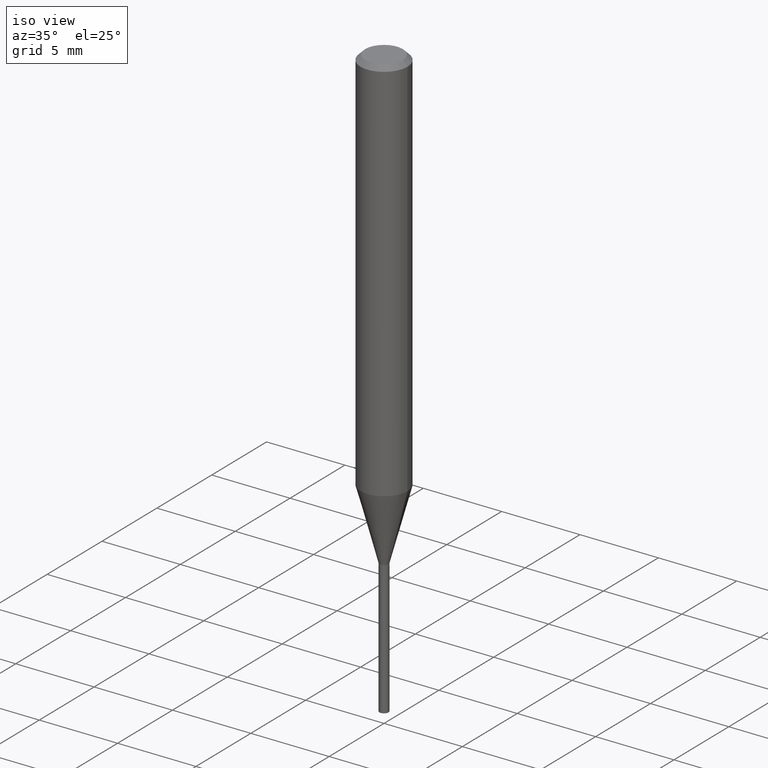
[diagram: clean part render]
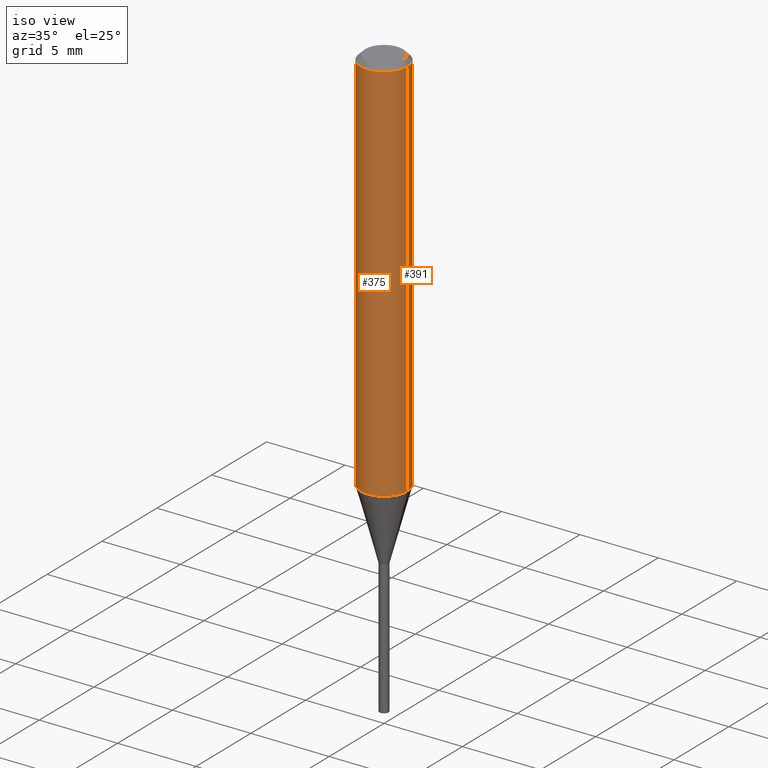
[diagram: same view with one multi-face feature highlighted, each face labeled with its STEP entity id]
A machine part, iso view. The highlighted faces form ONE feature: a constant-radius fillet chain: 2 tangent blend faces with common blend radius 1.4999 mm. The faces share edges in the B-rep.
Their STEP definitions:
[1] entity #391 (Cylinder):
#14 = CARTESIAN_POINT ( 'NONE',  ( 0.05904999999999999832, -4.535783407291118600E-16, -0.01181000000000006871 ) ) ;
#16 = DIRECTION ( 'NONE',  ( 1.000000000000000000, -6.982962677686266711E-15, 4.876176775795936353E-29 ) ) ;
#21 = CARTESIAN_POINT ( 'NONE',  ( -0.05905000000000013016, -2.986439169543490750E-15, -0.9755213688578289188 ) ) ;
#28 = EDGE_LOOP ( 'NONE', ( #339, #81, #338, #84 ) ) ;
#40 = CARTESIAN_POINT ( 'NONE',  ( -0.05904999999999999832, -1.304049039344443704E-15, -0.01181000000000006871 ) ) ;
#55 = CARTESIAN_POINT ( 'NONE',  ( 2.888098660104663328E-31, -4.123439461173779030E-17, -0.01181000000000006871 ) ) ;
#58 = DIRECTION ( 'NONE',  ( -2.445468806185136877E-29, 3.491481338843145188E-15, 1.000000000000000000 ) ) ;
#60 = AXIS2_PLACEMENT_3D ( 'NONE', #275, #431, #16 ) ;
#74 = VERTEX_POINT ( 'NONE', #40 ) ;
#75 = AXIS2_PLACEMENT_3D ( 'NONE', #55, #164, #167 ) ;
#81 = ORIENTED_EDGE ( 'NONE', *, *, #193, .T. ) ;
#84 = ORIENTED_EDGE ( 'NONE', *, *, #117, .F. ) ;
#87 = DIRECTION ( 'NONE',  ( 1.000000000000000000, -6.982962677686265133E-15, 0.000000000000000000 ) ) ;
#117 = EDGE_CURVE ( 'NONE', #328, #489, #165, .T. ) ;
#135 = FACE_OUTER_BOUND ( 'NONE', #28, .T. ) ;
#164 = DIRECTION ( 'NONE',  ( -2.445468806185136597E-29, 3.491481338843145583E-15, 1.000000000000000000 ) ) ;
#165 = LINE ( 'NONE', #351, #378 ) ;
#167 = DIRECTION ( 'NONE',  ( 1.000000000000000000, -6.982962677686266711E-15, 0.000000000000000000 ) ) ;
#193 = EDGE_CURVE ( 'NONE', #414, #74, #278, .T. ) ;
#223 = CIRCLE ( 'NONE', #304, 0.05905000000000013016 ) ;
#236 = VECTOR ( 'NONE', #239, 39.37007874015748143 ) ;
#239 = DIRECTION ( 'NONE',  ( -2.445468806185136877E-29, 3.491481338843145188E-15, 1.000000000000000000 ) ) ;
#248 = CARTESIAN_POINT ( 'NONE',  ( 0.05905000000000013016, -3.818358601127205952E-15, -0.9755213688578289188 ) ) ;
#273 = CARTESIAN_POINT ( 'NONE',  ( -0.05905000000000006771, 4.195754854663396409E-16, -2.904631170795525045E-30 ) ) ;
#275 = CARTESIAN_POINT ( 'NONE',  ( 0.000000000000000000, 0.000000000000000000, 0.000000000000000000 ) ) ;
#278 = LINE ( 'NONE', #273, #236 ) ;
#287 = CIRCLE ( 'NONE', #75, 0.05904999999999999832 ) ;
#304 = AXIS2_PLACEMENT_3D ( 'NONE', #352, #389, #87 ) ;
#328 = VERTEX_POINT ( 'NONE', #248 ) ;
#338 = ORIENTED_EDGE ( 'NONE', *, *, #490, .F. ) ;
#339 = ORIENTED_EDGE ( 'NONE', *, *, #470, .T. ) ;
#351 = CARTESIAN_POINT ( 'NONE',  ( 0.05905000000000006771, -4.123439461173745257E-16, 2.879382386107503723E-30 ) ) ;
#352 = CARTESIAN_POINT ( 'NONE',  ( 2.385607077308845080E-29, -3.406014655009830638E-15, -0.9755213688578289188 ) ) ;
#378 = VECTOR ( 'NONE', #58, 39.37007874015748143 ) ;
#389 = DIRECTION ( 'NONE',  ( -2.445468806185136597E-29, 3.491481338843145583E-15, 1.000000000000000000 ) ) ;
#391 = ADVANCED_FACE ( 'NONE', ( #135 ), #398, .T. ) ;
#398 = CYLINDRICAL_SURFACE ( 'NONE', #60, 0.05905000000000006771 ) ;
#414 = VERTEX_POINT ( 'NONE', #21 ) ;
#431 = DIRECTION ( 'NONE',  ( -2.445468806185136597E-29, 3.491481338843145583E-15, 1.000000000000000000 ) ) ;
#470 = EDGE_CURVE ( 'NONE', #328, #414, #223, .T. ) ;
#489 = VERTEX_POINT ( 'NONE', #14 ) ;
#490 = EDGE_CURVE ( 'NONE', #489, #74, #287, .T. ) ;
[2] entity #375 (Cylinder):
#1 = ORIENTED_EDGE ( 'NONE', *, *, #54, .F. ) ;
#6 = DIRECTION ( 'NONE',  ( -2.445468806185136597E-29, 3.491481338843145583E-15, 1.000000000000000000 ) ) ;
#8 = ORIENTED_EDGE ( 'NONE', *, *, #193, .F. ) ;
#14 = CARTESIAN_POINT ( 'NONE',  ( 0.05904999999999999832, -4.535783407291118600E-16, -0.01181000000000006871 ) ) ;
#21 = CARTESIAN_POINT ( 'NONE',  ( -0.05905000000000013016, -2.986439169543490750E-15, -0.9755213688578289188 ) ) ;
#22 = CARTESIAN_POINT ( 'NONE',  ( 2.385607077308845080E-29, -3.406014655009830638E-15, -0.9755213688578289188 ) ) ;
#40 = CARTESIAN_POINT ( 'NONE',  ( -0.05904999999999999832, -1.304049039344443704E-15, -0.01181000000000006871 ) ) ;
#54 = EDGE_CURVE ( 'NONE', #74, #489, #386, .T. ) ;
#58 = DIRECTION ( 'NONE',  ( -2.445468806185136877E-29, 3.491481338843145188E-15, 1.000000000000000000 ) ) ;
#74 = VERTEX_POINT ( 'NONE', #40 ) ;
#117 = EDGE_CURVE ( 'NONE', #328, #489, #165, .T. ) ;
#126 = FACE_OUTER_BOUND ( 'NONE', #447, .T. ) ;
#147 = ORIENTED_EDGE ( 'NONE', *, *, #269, .T. ) ;
#165 = LINE ( 'NONE', #351, #378 ) ;
#171 = DIRECTION ( 'NONE',  ( -2.445468806185136597E-29, 3.491481338843145583E-15, 1.000000000000000000 ) ) ;
#180 = DIRECTION ( 'NONE',  ( 1.000000000000000000, -6.982962677686265133E-15, 0.000000000000000000 ) ) ;
#192 = AXIS2_PLACEMENT_3D ( 'NONE', #313, #350, #424 ) ;
#193 = EDGE_CURVE ( 'NONE', #414, #74, #278, .T. ) ;
#236 = VECTOR ( 'NONE', #239, 39.37007874015748143 ) ;
#239 = DIRECTION ( 'NONE',  ( -2.445468806185136877E-29, 3.491481338843145188E-15, 1.000000000000000000 ) ) ;
#248 = CARTESIAN_POINT ( 'NONE',  ( 0.05905000000000013016, -3.818358601127205952E-15, -0.9755213688578289188 ) ) ;
#265 = DIRECTION ( 'NONE',  ( 1.000000000000000000, -6.982962677686266711E-15, 0.000000000000000000 ) ) ;
#267 = CIRCLE ( 'NONE', #337, 0.05905000000000013016 ) ;
#269 = EDGE_CURVE ( 'NONE', #414, #328, #267, .T. ) ;
#273 = CARTESIAN_POINT ( 'NONE',  ( -0.05905000000000006771, 4.195754854663396409E-16, -2.904631170795525045E-30 ) ) ;
#278 = LINE ( 'NONE', #273, #236 ) ;
#282 = CYLINDRICAL_SURFACE ( 'NONE', #192, 0.05905000000000006771 ) ;
#313 = CARTESIAN_POINT ( 'NONE',  ( 0.000000000000000000, 0.000000000000000000, 0.000000000000000000 ) ) ;
#328 = VERTEX_POINT ( 'NONE', #248 ) ;
#337 = AXIS2_PLACEMENT_3D ( 'NONE', #22, #171, #180 ) ;
#350 = DIRECTION ( 'NONE',  ( -2.445468806185136597E-29, 3.491481338843145583E-15, 1.000000000000000000 ) ) ;
#351 = CARTESIAN_POINT ( 'NONE',  ( 0.05905000000000006771, -4.123439461173745257E-16, 2.879382386107503723E-30 ) ) ;
#375 = ADVANCED_FACE ( 'NONE', ( #126 ), #282, .T. ) ;
#378 = VECTOR ( 'NONE', #58, 39.37007874015748143 ) ;
#386 = CIRCLE ( 'NONE', #419, 0.05904999999999999832 ) ;
#409 = ORIENTED_EDGE ( 'NONE', *, *, #117, .T. ) ;
#414 = VERTEX_POINT ( 'NONE', #21 ) ;
#419 = AXIS2_PLACEMENT_3D ( 'NONE', #420, #6, #265 ) ;
#420 = CARTESIAN_POINT ( 'NONE',  ( 2.888098660104663328E-31, -4.123439461173779030E-17, -0.01181000000000006871 ) ) ;
#424 = DIRECTION ( 'NONE',  ( 1.000000000000000000, -6.982962677686266711E-15, 4.876176775795936353E-29 ) ) ;
#447 = EDGE_LOOP ( 'NONE', ( #8, #147, #409, #1 ) ) ;
#489 = VERTEX_POINT ( 'NONE', #14 ) ;